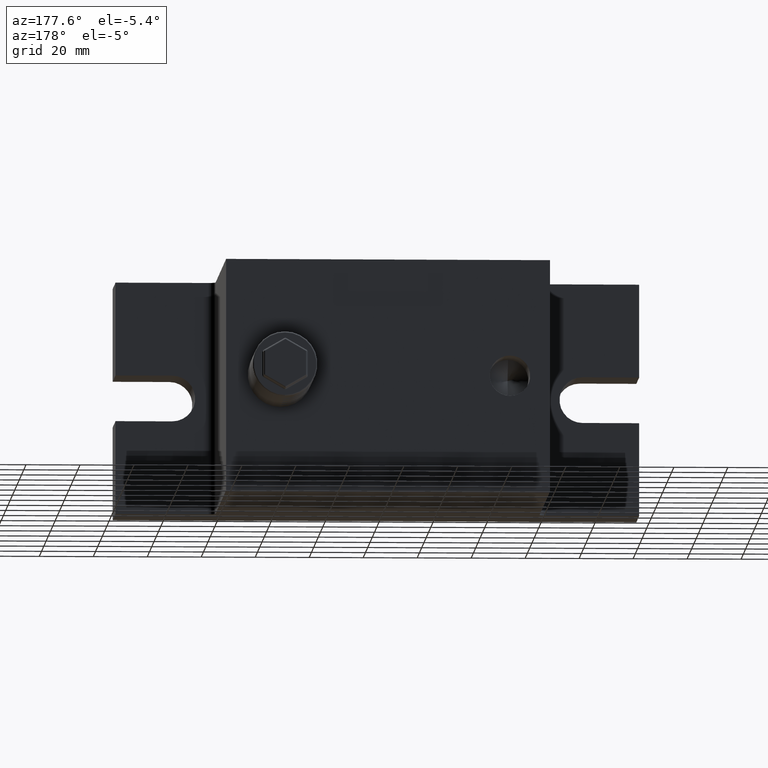
[diagram: clean part render]
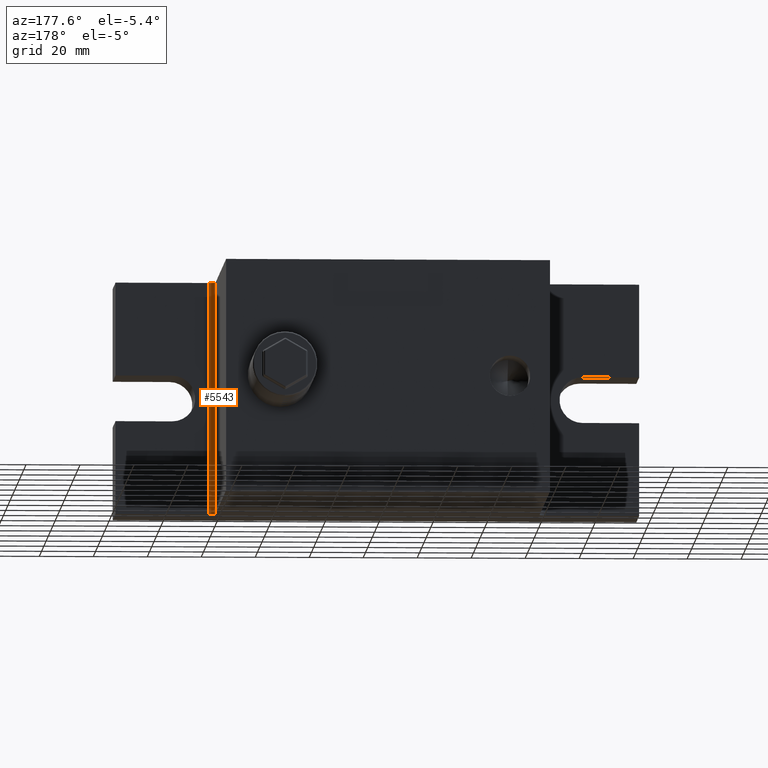
[diagram: same view with one face highlighted and labeled with its STEP entity id]
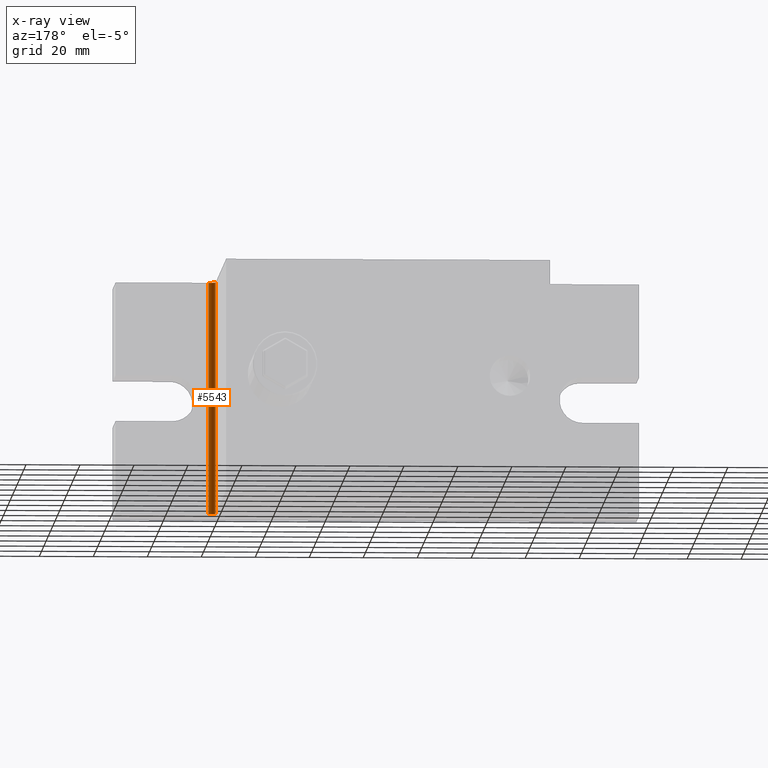
[diagram: x-ray of the same camera — body ghosted, the highlighted face saturated]
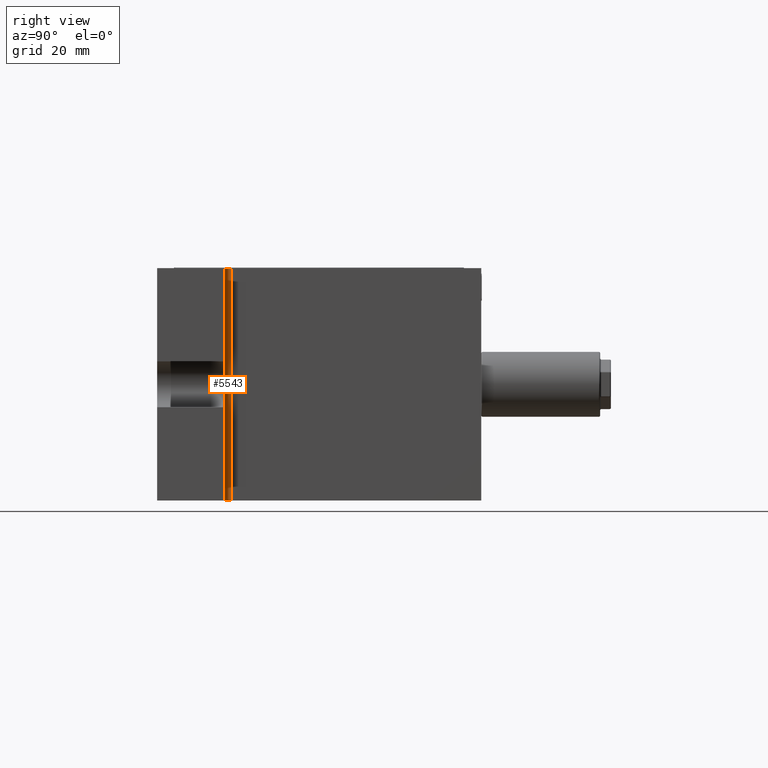
[diagram: same view with one face highlighted and labeled with its STEP entity id]
A machine part, auxiliary view. The second image highlights one B-rep face of the part: STEP entity #5543.
The next image is the same camera in x-ray: the body ghosted, the highlighted face saturated — about 0% of this face is hidden behind the body in this view.
A second angle (right view) of the same face is appended — the face is thin or edge-on in the first view.
In plain terms, the highlighted cylindrical surface (edge-blend (fillet) strip) has radius 2.5 mm, axis along (0, 0, -1).
Its self-contained STEP definition (entity closure, byte-faithful):
#688 = CIRCLE ( 'NONE', #7800, 2.500000000000002200 ) ;
#826 = ORIENTED_EDGE ( 'NONE', *, *, #22116, .F. ) ;
#1285 = VECTOR ( 'NONE', #8783, 1000.000000000000000 ) ;
#1682 = CARTESIAN_POINT ( 'NONE',  ( 60.00000000000000000, -32.50000000000000000, -43.00000000000000000 ) ) ;
#2105 = LINE ( 'NONE', #15454, #7967 ) ;
#2716 = DIRECTION ( 'NONE',  ( -1.000000000000000000, 0.0000000000000000000, 0.0000000000000000000 ) ) ;
#3300 = VERTEX_POINT ( 'NONE', #10363 ) ;
#4472 = LINE ( 'NONE', #10639, #1285 ) ;
#5543 = ADVANCED_FACE ( 'NONE', ( #15508 ), #13371, .F. ) ;
#7629 = DIRECTION ( 'NONE',  ( -1.000000000000000000, 0.0000000000000000000, 0.0000000000000000000 ) ) ;
#7699 = AXIS2_PLACEMENT_3D ( 'NONE', #19670, #17881, #7629 ) ;
#7800 = AXIS2_PLACEMENT_3D ( 'NONE', #18667, #18153, #18297 ) ;
#7967 = VECTOR ( 'NONE', #8484, 1000.000000000000000 ) ;
#8484 = DIRECTION ( 'NONE',  ( -0.0000000000000000000, -0.0000000000000000000, -1.000000000000000000 ) ) ;
#8783 = DIRECTION ( 'NONE',  ( 0.0000000000000000000, 0.0000000000000000000, 1.000000000000000000 ) ) ;
#9363 = ORIENTED_EDGE ( 'NONE', *, *, #21750, .F. ) ;
#9497 = CARTESIAN_POINT ( 'NONE',  ( 62.50000000000000000, -35.00000000000000000, -43.00000000000000000 ) ) ;
#10363 = CARTESIAN_POINT ( 'NONE',  ( 62.50000000000000000, -35.00000000000000000, 43.00000000000000000 ) ) ;
#10639 = CARTESIAN_POINT ( 'NONE',  ( 62.50000000000000000, -35.00000000000000000, 43.00000000000000000 ) ) ;
#11208 = DIRECTION ( 'NONE',  ( 0.0000000000000000000, 0.0000000000000000000, -1.000000000000000000 ) ) ;
#11245 = VERTEX_POINT ( 'NONE', #1682 ) ;
#11395 = CIRCLE ( 'NONE', #7699, 2.500000000000002200 ) ;
#12280 = EDGE_CURVE ( 'NONE', #3300, #21369, #688, .T. ) ;
#12417 = AXIS2_PLACEMENT_3D ( 'NONE', #16357, #11208, #2716 ) ;
#12796 = EDGE_LOOP ( 'NONE', ( #14723, #9363, #21815, #826 ) ) ;
#13371 = CYLINDRICAL_SURFACE ( 'NONE', #12417, 2.500000000000002200 ) ;
#13447 = VERTEX_POINT ( 'NONE', #9497 ) ;
#14723 = ORIENTED_EDGE ( 'NONE', *, *, #16994, .F. ) ;
#15454 = CARTESIAN_POINT ( 'NONE',  ( 60.00000000000000000, -32.50000000000000000, -43.00000000000000000 ) ) ;
#15508 = FACE_OUTER_BOUND ( 'NONE', #12796, .T. ) ;
#16357 = CARTESIAN_POINT ( 'NONE',  ( 62.50000000000000000, -32.50000000000000000, -43.00000000000000000 ) ) ;
#16994 = EDGE_CURVE ( 'NONE', #11245, #13447, #11395, .T. ) ;
#17881 = DIRECTION ( 'NONE',  ( -0.0000000000000000000, -0.0000000000000000000, 1.000000000000000000 ) ) ;
#18153 = DIRECTION ( 'NONE',  ( 0.0000000000000000000, 0.0000000000000000000, -1.000000000000000000 ) ) ;
#18297 = DIRECTION ( 'NONE',  ( -1.000000000000000000, 0.0000000000000000000, 0.0000000000000000000 ) ) ;
#18667 = CARTESIAN_POINT ( 'NONE',  ( 62.50000000000000000, -32.50000000000000000, 43.00000000000000000 ) ) ;
#19670 = CARTESIAN_POINT ( 'NONE',  ( 62.50000000000000000, -32.50000000000000000, -43.00000000000000000 ) ) ;
#20883 = CARTESIAN_POINT ( 'NONE',  ( 60.00000000000000000, -32.50000000000000000, 43.00000000000000000 ) ) ;
#21369 = VERTEX_POINT ( 'NONE', #20883 ) ;
#21750 = EDGE_CURVE ( 'NONE', #21369, #11245, #2105, .T. ) ;
#21815 = ORIENTED_EDGE ( 'NONE', *, *, #12280, .F. ) ;
#22116 = EDGE_CURVE ( 'NONE', #13447, #3300, #4472, .T. ) ;